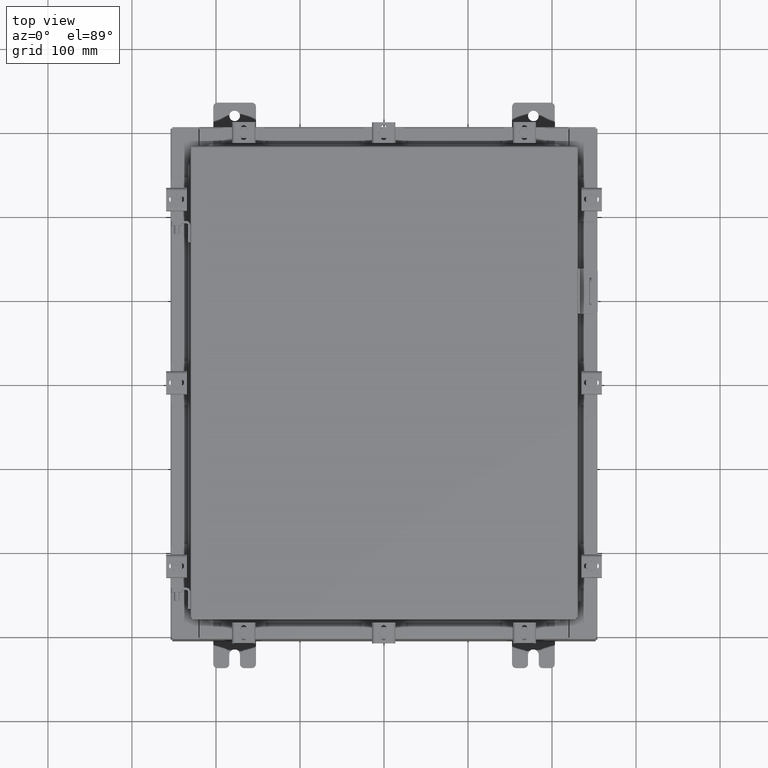
[diagram: clean part render]
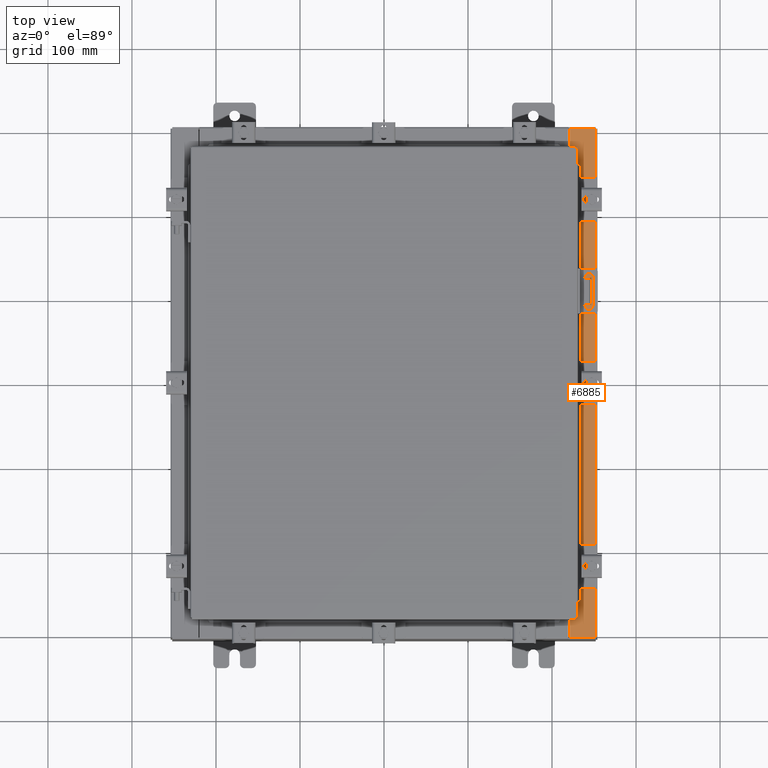
[diagram: same view with one face highlighted and labeled with its STEP entity id]
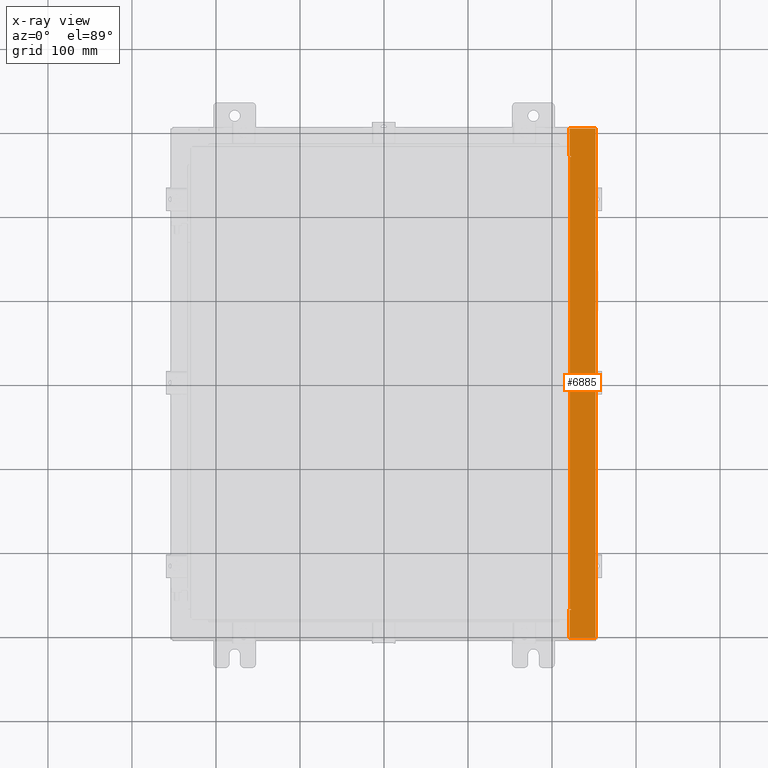
[diagram: x-ray of the same camera — body ghosted, the highlighted face saturated]
A machine part, top view. The second image highlights one B-rep face of the part: STEP entity #6885.
The next image is the same camera in x-ray: the body ghosted, the highlighted face saturated — about 0% of this face is hidden behind the body in this view.
In plain terms, the highlighted planar face has unit normal (-0, 0, -1).
Its self-contained STEP definition (entity closure, byte-faithful):
#146 = EDGE_CURVE ( 'NONE', #651, #18648, #21311, .T. ) ;
#414 = AXIS2_PLACEMENT_3D ( 'NONE', #14712, #18058, #4261 ) ;
#651 = VERTEX_POINT ( 'NONE', #2439 ) ;
#833 = AXIS2_PLACEMENT_3D ( 'NONE', #13379, #2942, #15148 ) ;
#1215 = CARTESIAN_POINT ( 'NONE',  ( 8.699700000000019500, -10.63109999999999600, 5.925300000000009800 ) ) ;
#1346 = DIRECTION ( 'NONE',  ( -1.000000000000000000, 0.0000000000000000000, 0.0000000000000000000 ) ) ;
#1508 = VERTEX_POINT ( 'NONE', #13278 ) ;
#1618 = VERTEX_POINT ( 'NONE', #16977 ) ;
#1681 = LINE ( 'NONE', #2812, #19108 ) ;
#1864 = CARTESIAN_POINT ( 'NONE',  ( 8.712700000000021200, -10.59374999999999800, 5.925300000000011600 ) ) ;
#2144 = EDGE_CURVE ( 'NONE', #11116, #5998, #6495, .T. ) ;
#2401 = DIRECTION ( 'NONE',  ( -0.0000000000000000000, -1.000000000000000000, -0.0000000000000000000 ) ) ;
#2439 = CARTESIAN_POINT ( 'NONE',  ( 8.750050000000021200, 10.59374999999999600, 5.925300000000009800 ) ) ;
#2501 = LINE ( 'NONE', #9889, #11205 ) ;
#2812 = CARTESIAN_POINT ( 'NONE',  ( 4.252457061909005100E-014, 11.92529999999999800, 5.925300000000072800 ) ) ;
#2942 = DIRECTION ( 'NONE',  ( 7.132762385546378400E-015, 0.0000000000000000000, 1.000000000000000000 ) ) ;
#2971 = ORIENTED_EDGE ( 'NONE', *, *, #11561, .F. ) ;
#3701 = EDGE_CURVE ( 'NONE', #1618, #11116, #1681, .T. ) ;
#4261 = DIRECTION ( 'NONE',  ( 1.000000000000000000, 0.0000000000000000000, 0.0000000000000000000 ) ) ;
#4283 = FACE_OUTER_BOUND ( 'NONE', #5276, .T. ) ;
#4381 = EDGE_CURVE ( 'NONE', #18648, #5998, #12259, .T. ) ;
#4434 = CARTESIAN_POINT ( 'NONE',  ( 8.750050000000021200, 10.63109999999999500, 5.925300000000009800 ) ) ;
#4604 = CARTESIAN_POINT ( 'NONE',  ( 8.699700000000019500, 0.0000000000000000000, 5.925300000000009800 ) ) ;
#5276 = EDGE_LOOP ( 'NONE', ( #6133, #13569, #16835, #22419, #20453, #10943, #15688, #21958, #21596, #2971, #10203, #13590 ) ) ;
#5608 = LINE ( 'NONE', #18692, #18959 ) ;
#5927 = CARTESIAN_POINT ( 'NONE',  ( 8.712700000000021200, 10.59374999999999600, 5.925300000000011600 ) ) ;
#5967 = CARTESIAN_POINT ( 'NONE',  ( 9.912300000000019700, -11.92530000000000000, 5.925300000000001800 ) ) ;
#5992 = LINE ( 'NONE', #21962, #19326 ) ;
#5998 = VERTEX_POINT ( 'NONE', #12690 ) ;
#6075 = VECTOR ( 'NONE', #14620, 39.37007874015748100 ) ;
#6133 = ORIENTED_EDGE ( 'NONE', *, *, #6306, .F. ) ;
#6306 = EDGE_CURVE ( 'NONE', #17923, #1508, #8363, .T. ) ;
#6495 = LINE ( 'NONE', #4604, #11125 ) ;
#6885 = ADVANCED_FACE ( 'NONE', ( #4283 ), #16692, .F. ) ;
#7673 = CARTESIAN_POINT ( 'NONE',  ( 8.699700000000019500, -11.92530000000000000, 5.925300000000009800 ) ) ;
#7780 = CARTESIAN_POINT ( 'NONE',  ( 4.252457061909005100E-014, -11.92530000000000000, 5.925300000000072800 ) ) ;
#8363 = LINE ( 'NONE', #1215, #17091 ) ;
#8501 = EDGE_CURVE ( 'NONE', #19254, #18608, #12932, .T. ) ;
#8586 = LINE ( 'NONE', #21508, #21977 ) ;
#8866 = VERTEX_POINT ( 'NONE', #14102 ) ;
#9726 = EDGE_CURVE ( 'NONE', #21956, #651, #19423, .T. ) ;
#9756 = DIRECTION ( 'NONE',  ( -7.132762385546378400E-015, 0.0000000000000000000, -1.000000000000000000 ) ) ;
#9889 = CARTESIAN_POINT ( 'NONE',  ( 8.712700000000021200, -10.59375000000000000, 5.925300000000011600 ) ) ;
#10203 = ORIENTED_EDGE ( 'NONE', *, *, #22145, .F. ) ;
#10425 = DIRECTION ( 'NONE',  ( 0.0000000000000000000, -1.000000000000000000, 0.0000000000000000000 ) ) ;
#10737 = AXIS2_PLACEMENT_3D ( 'NONE', #18441, #9756, #21950 ) ;
#10943 = ORIENTED_EDGE ( 'NONE', *, *, #2144, .T. ) ;
#11116 = VERTEX_POINT ( 'NONE', #19359 ) ;
#11125 = VECTOR ( 'NONE', #10425, 39.37007874015748100 ) ;
#11205 = VECTOR ( 'NONE', #15179, 39.37007874015748100 ) ;
#11561 = EDGE_CURVE ( 'NONE', #15435, #21956, #2501, .T. ) ;
#12215 = EDGE_CURVE ( 'NONE', #1508, #8866, #14504, .T. ) ;
#12259 = LINE ( 'NONE', #13546, #20999 ) ;
#12690 = CARTESIAN_POINT ( 'NONE',  ( 8.699700000000019500, 10.63109999999999600, 5.925300000000009800 ) ) ;
#12932 = LINE ( 'NONE', #7780, #16998 ) ;
#13278 = CARTESIAN_POINT ( 'NONE',  ( 8.750050000000021200, -10.63109999999999600, 5.925300000000009800 ) ) ;
#13379 = CARTESIAN_POINT ( 'NONE',  ( 8.750050000000021200, -10.61242499999999800, 5.925300000000011600 ) ) ;
#13546 = CARTESIAN_POINT ( 'NONE',  ( 8.750050000000021200, 10.63109999999999500, 5.925300000000011600 ) ) ;
#13569 = ORIENTED_EDGE ( 'NONE', *, *, #18723, .T. ) ;
#13590 = ORIENTED_EDGE ( 'NONE', *, *, #12215, .F. ) ;
#14102 = CARTESIAN_POINT ( 'NONE',  ( 8.750050000000021200, -10.59374999999999800, 5.925300000000009800 ) ) ;
#14504 = CIRCLE ( 'NONE', #833, 0.01867499999999949400 ) ;
#14620 = DIRECTION ( 'NONE',  ( 1.000000000000000000, 0.0000000000000000000, 0.0000000000000000000 ) ) ;
#14712 = CARTESIAN_POINT ( 'NONE',  ( 8.750050000000021200, 10.61242499999999500, 5.925300000000011600 ) ) ;
#15133 = DIRECTION ( 'NONE',  ( 1.000000000000000000, 0.0000000000000000000, 2.170286390199955400E-014 ) ) ;
#15148 = DIRECTION ( 'NONE',  ( 1.000000000000000000, 0.0000000000000000000, 0.0000000000000000000 ) ) ;
#15179 = DIRECTION ( 'NONE',  ( -0.0000000000000000000, 1.000000000000000000, -0.0000000000000000000 ) ) ;
#15435 = VERTEX_POINT ( 'NONE', #1864 ) ;
#15651 = EDGE_CURVE ( 'NONE', #1618, #18608, #8586, .T. ) ;
#15688 = ORIENTED_EDGE ( 'NONE', *, *, #4381, .F. ) ;
#16126 = CARTESIAN_POINT ( 'NONE',  ( 8.699700000000019500, -10.63109999999999600, 5.925300000000009800 ) ) ;
#16692 = PLANE ( 'NONE',  #10737 ) ;
#16773 = DIRECTION ( 'NONE',  ( 0.0000000000000000000, -1.000000000000000000, 0.0000000000000000000 ) ) ;
#16835 = ORIENTED_EDGE ( 'NONE', *, *, #8501, .T. ) ;
#16977 = CARTESIAN_POINT ( 'NONE',  ( 9.912300000000019700, 11.92529999999999800, 5.925300000000001800 ) ) ;
#16998 = VECTOR ( 'NONE', #19986, 39.37007874015748100 ) ;
#17091 = VECTOR ( 'NONE', #15133, 39.37007874015748100 ) ;
#17923 = VERTEX_POINT ( 'NONE', #16126 ) ;
#18058 = DIRECTION ( 'NONE',  ( 7.132762385546378400E-015, 0.0000000000000000000, 1.000000000000000000 ) ) ;
#18320 = CARTESIAN_POINT ( 'NONE',  ( 8.712700000000021200, 10.59374999999999600, 5.925300000000011600 ) ) ;
#18441 = CARTESIAN_POINT ( 'NONE',  ( 4.252457061909005100E-014, 0.0000000000000000000, 5.925300000000072800 ) ) ;
#18608 = VERTEX_POINT ( 'NONE', #5967 ) ;
#18648 = VERTEX_POINT ( 'NONE', #4434 ) ;
#18692 = CARTESIAN_POINT ( 'NONE',  ( 8.750050000000021200, -10.59374999999999800, 5.925300000000011600 ) ) ;
#18723 = EDGE_CURVE ( 'NONE', #17923, #19254, #5992, .T. ) ;
#18959 = VECTOR ( 'NONE', #1346, 39.37007874015748100 ) ;
#19108 = VECTOR ( 'NONE', #20253, 39.37007874015748100 ) ;
#19254 = VERTEX_POINT ( 'NONE', #7673 ) ;
#19326 = VECTOR ( 'NONE', #16773, 39.37007874015748100 ) ;
#19359 = CARTESIAN_POINT ( 'NONE',  ( 8.699700000000019500, 11.92529999999999600, 5.925300000000009800 ) ) ;
#19423 = LINE ( 'NONE', #5927, #6075 ) ;
#19986 = DIRECTION ( 'NONE',  ( 1.000000000000000000, 0.0000000000000000000, -7.132762385546378400E-015 ) ) ;
#20253 = DIRECTION ( 'NONE',  ( -1.000000000000000000, 0.0000000000000000000, 7.132762385546378400E-015 ) ) ;
#20453 = ORIENTED_EDGE ( 'NONE', *, *, #3701, .T. ) ;
#20999 = VECTOR ( 'NONE', #22233, 39.37007874015748100 ) ;
#21311 = CIRCLE ( 'NONE', #414, 0.01867499999999949400 ) ;
#21508 = CARTESIAN_POINT ( 'NONE',  ( 9.912300000000019700, -11.92530000000000000, 5.925300000000001800 ) ) ;
#21596 = ORIENTED_EDGE ( 'NONE', *, *, #9726, .F. ) ;
#21950 = DIRECTION ( 'NONE',  ( -1.000000000000000000, 0.0000000000000000000, 7.132762385546378400E-015 ) ) ;
#21956 = VERTEX_POINT ( 'NONE', #18320 ) ;
#21958 = ORIENTED_EDGE ( 'NONE', *, *, #146, .F. ) ;
#21962 = CARTESIAN_POINT ( 'NONE',  ( 8.699700000000019500, 0.0000000000000000000, 5.925300000000009800 ) ) ;
#21977 = VECTOR ( 'NONE', #2401, 39.37007874015748100 ) ;
#22145 = EDGE_CURVE ( 'NONE', #8866, #15435, #5608, .T. ) ;
#22233 = DIRECTION ( 'NONE',  ( -1.000000000000000000, 4.340572780399910900E-014, -2.170286390199955400E-014 ) ) ;
#22419 = ORIENTED_EDGE ( 'NONE', *, *, #15651, .F. ) ;